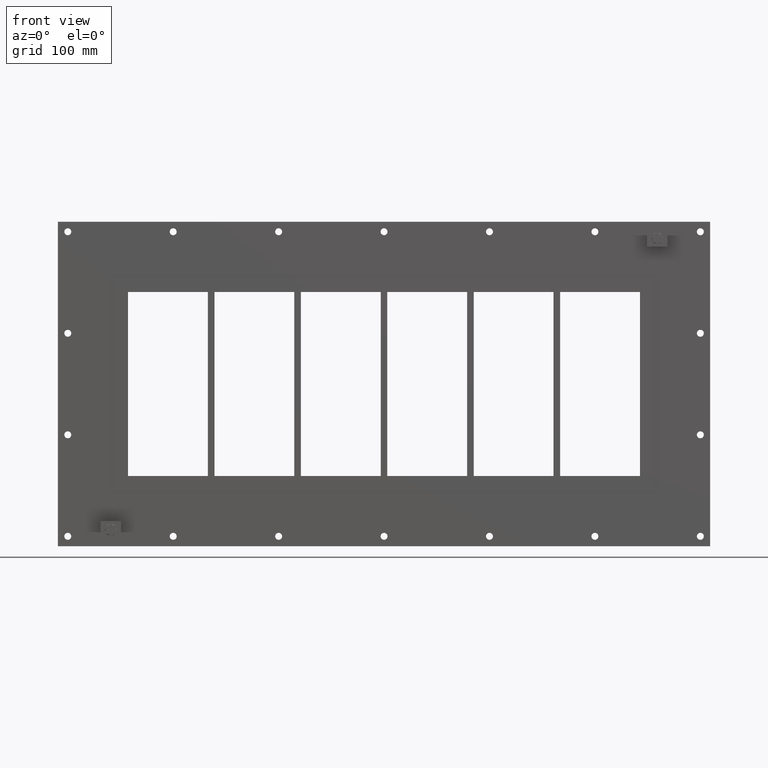
[diagram: clean part render]
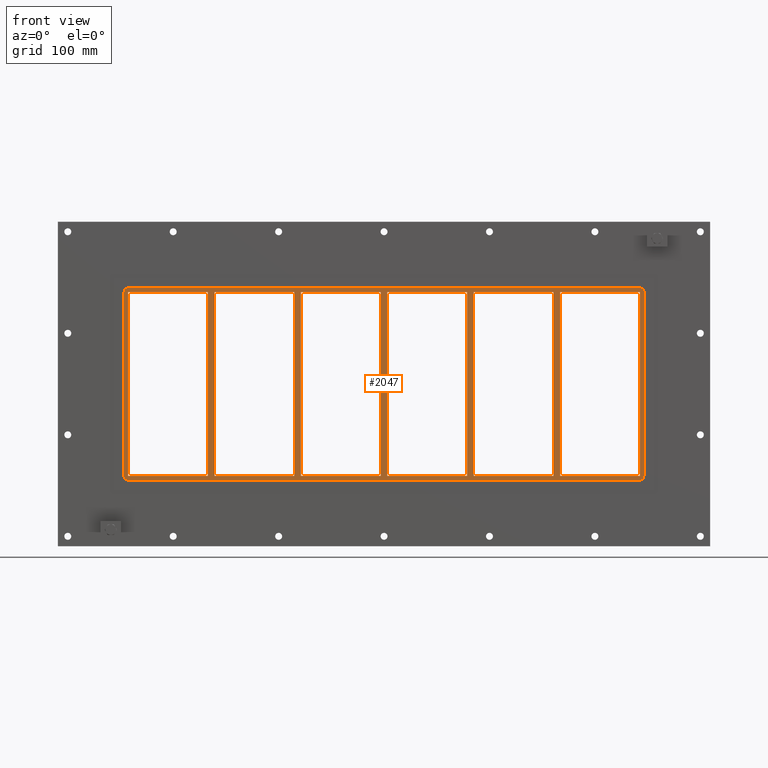
[diagram: same view with one face highlighted and labeled with its STEP entity id]
A machine part, front view. The second image highlights one B-rep face of the part: STEP entity #2047.
In plain terms, the highlighted planar face has unit normal (0, 1, 0).
Its self-contained STEP definition (entity closure, byte-faithful):
#577=CARTESIAN_POINT('',(256.00000000000068,-3.0,-139.0));
#578=VERTEX_POINT('',#577);
#579=CARTESIAN_POINT('',(256.00000000000068,-3.0,139.00000000000003));
#580=VERTEX_POINT('',#579);
#581=CARTESIAN_POINT('',(256.00000000000068,-3.0,-139.0));
#582=DIRECTION('',(0.0,0.0,1.0));
#583=VECTOR('',#582,278.0);
#584=LINE('',#581,#583);
#585=EDGE_CURVE('',#578,#580,#584,.T.);
#617=CARTESIAN_POINT('',(265.99999999999642,-3.0,139.00000000000003));
#618=VERTEX_POINT('',#617);
#619=CARTESIAN_POINT('',(265.99999999999642,-3.0,-138.99999999998175));
#620=VERTEX_POINT('',#619);
#621=CARTESIAN_POINT('',(265.99999999999642,-3.0,139.00000000000003));
#622=DIRECTION('',(0.0,0.0,-1.0));
#623=VECTOR('',#622,277.99999999998181);
#624=LINE('',#621,#623);
#625=EDGE_CURVE('',#618,#620,#624,.T.);
#657=CARTESIAN_POINT('',(125.50000000000068,-3.0,-139.0));
#658=VERTEX_POINT('',#657);
#659=CARTESIAN_POINT('',(125.50000000000065,-3.0,139.00000000000003));
#660=VERTEX_POINT('',#659);
#661=CARTESIAN_POINT('',(125.50000000000068,-3.0,-139.0));
#662=DIRECTION('',(0.0,0.0,1.0));
#663=VECTOR('',#662,278.0);
#664=LINE('',#661,#663);
#665=EDGE_CURVE('',#658,#660,#664,.T.);
#697=CARTESIAN_POINT('',(135.49999999999642,-3.0,139.00000000000003));
#698=VERTEX_POINT('',#697);
#699=CARTESIAN_POINT('',(135.49999999999642,-3.0,-138.99999999998175));
#700=VERTEX_POINT('',#699);
#701=CARTESIAN_POINT('',(135.49999999999642,-3.0,139.00000000000003));
#702=DIRECTION('',(0.0,0.0,-1.0));
#703=VECTOR('',#702,277.99999999998181);
#704=LINE('',#701,#703);
#705=EDGE_CURVE('',#698,#700,#704,.T.);
#737=CARTESIAN_POINT('',(-4.999999999999361,-3.0,-139.0));
#738=VERTEX_POINT('',#737);
#739=CARTESIAN_POINT('',(-4.999999999999396,-3.0,139.00000000000003));
#740=VERTEX_POINT('',#739);
#741=CARTESIAN_POINT('',(-4.999999999999361,-3.0,-139.0));
#742=DIRECTION('',(0.0,0.0,1.0));
#743=VECTOR('',#742,278.0);
#744=LINE('',#741,#743);
#745=EDGE_CURVE('',#738,#740,#744,.T.);
#777=CARTESIAN_POINT('',(4.999999999996376,-3.0,139.00000000000003));
#778=VERTEX_POINT('',#777);
#779=CARTESIAN_POINT('',(4.999999999996376,-3.0,-138.99999999998175));
#780=VERTEX_POINT('',#779);
#781=CARTESIAN_POINT('',(4.999999999996376,-3.0,139.00000000000003));
#782=DIRECTION('',(0.0,0.0,-1.0));
#783=VECTOR('',#782,277.99999999998181);
#784=LINE('',#781,#783);
#785=EDGE_CURVE('',#778,#780,#784,.T.);
#817=CARTESIAN_POINT('',(-135.49999999999937,-3.0,-139.0));
#818=VERTEX_POINT('',#817);
#819=CARTESIAN_POINT('',(-135.4999999999994,-3.0,139.00000000000003));
#820=VERTEX_POINT('',#819);
#821=CARTESIAN_POINT('',(-135.49999999999937,-3.0,-139.0));
#822=DIRECTION('',(0.0,0.0,1.0));
#823=VECTOR('',#822,278.0);
#824=LINE('',#821,#823);
#825=EDGE_CURVE('',#818,#820,#824,.T.);
#857=CARTESIAN_POINT('',(-125.50000000000364,-3.0,139.00000000000003));
#858=VERTEX_POINT('',#857);
#859=CARTESIAN_POINT('',(-125.50000000000364,-3.0,-138.99999999998175));
#860=VERTEX_POINT('',#859);
#861=CARTESIAN_POINT('',(-125.50000000000364,-3.0,139.00000000000003));
#862=DIRECTION('',(0.0,0.0,-1.0));
#863=VECTOR('',#862,277.99999999998181);
#864=LINE('',#861,#863);
#865=EDGE_CURVE('',#858,#860,#864,.T.);
#906=CARTESIAN_POINT('',(-256.00000000000364,-3.0,-138.99999999998175));
#907=VERTEX_POINT('',#906);
#914=CARTESIAN_POINT('',(-135.49999999999932,-3.0,-139.0));
#915=DIRECTION('',(-1.0,0.0,0.0));
#916=VECTOR('',#915,120.50000000000432);
#917=LINE('',#914,#916);
#918=EDGE_CURVE('',#818,#907,#917,.T.);
#936=CARTESIAN_POINT('',(-4.999999999999346,-3.0,-139.0));
#937=DIRECTION('',(-1.0,0.0,0.0));
#938=VECTOR('',#937,120.50000000000429);
#939=LINE('',#936,#938);
#940=EDGE_CURVE('',#738,#860,#939,.T.);
#958=CARTESIAN_POINT('',(125.5000000000007,-3.0,-139.0));
#959=DIRECTION('',(-1.0,0.0,0.0));
#960=VECTOR('',#959,120.50000000000431);
#961=LINE('',#958,#960);
#962=EDGE_CURVE('',#658,#780,#961,.T.);
#980=CARTESIAN_POINT('',(256.00000000000068,-3.0,-139.0));
#981=DIRECTION('',(-1.0,0.0,0.0));
#982=VECTOR('',#981,120.50000000000426);
#983=LINE('',#980,#982);
#984=EDGE_CURVE('',#578,#700,#983,.T.);
#995=CARTESIAN_POINT('',(386.50000000000023,-3.0,-139.0));
#996=VERTEX_POINT('',#995);
#997=CARTESIAN_POINT('',(386.50000000000023,-3.0,-139.0));
#998=DIRECTION('',(-1.0,0.0,0.0));
#999=VECTOR('',#998,120.50000000000375);
#1000=LINE('',#997,#999);
#1001=EDGE_CURVE('',#996,#620,#1000,.T.);
#1026=CARTESIAN_POINT('',(-256.00000000000364,-3.0,139.00000000000003));
#1027=VERTEX_POINT('',#1026);
#1028=CARTESIAN_POINT('',(-256.00000000000364,-3.0,139.00000000000003));
#1029=DIRECTION('',(1.0,0.0,0.0));
#1030=VECTOR('',#1029,120.50000000000423);
#1031=LINE('',#1028,#1030);
#1032=EDGE_CURVE('',#1027,#820,#1031,.T.);
#1057=CARTESIAN_POINT('',(-125.50000000000362,-3.0,139.00000000000003));
#1058=DIRECTION('',(1.0,0.0,0.0));
#1059=VECTOR('',#1058,120.50000000000425);
#1060=LINE('',#1057,#1059);
#1061=EDGE_CURVE('',#858,#740,#1060,.T.);
#1079=CARTESIAN_POINT('',(4.99999999999639,-3.0,139.00000000000003));
#1080=DIRECTION('',(1.0,0.0,0.0));
#1081=VECTOR('',#1080,120.50000000000423);
#1082=LINE('',#1079,#1081);
#1083=EDGE_CURVE('',#778,#660,#1082,.T.);
#1109=CARTESIAN_POINT('',(386.50000000000023,-3.0,139.00000000000003));
#1110=VERTEX_POINT('',#1109);
#1117=CARTESIAN_POINT('',(265.99999999999642,-3.0,139.00000000000003));
#1118=DIRECTION('',(1.0,0.0,0.0));
#1119=VECTOR('',#1118,120.50000000000375);
#1120=LINE('',#1117,#1119);
#1121=EDGE_CURVE('',#618,#1110,#1120,.T.);
#1132=CARTESIAN_POINT('',(135.49999999999642,-3.0,139.00000000000003));
#1133=DIRECTION('',(1.0,0.0,0.0));
#1134=VECTOR('',#1133,120.50000000000421);
#1135=LINE('',#1132,#1134);
#1136=EDGE_CURVE('',#698,#580,#1135,.T.);
#1153=CARTESIAN_POINT('',(-265.99999999999937,-3.0,-139.0));
#1154=VERTEX_POINT('',#1153);
#1155=CARTESIAN_POINT('',(-265.99999999999943,-3.0,139.00000000000003));
#1156=VERTEX_POINT('',#1155);
#1157=CARTESIAN_POINT('',(-265.99999999999937,-3.0,-139.0));
#1158=DIRECTION('',(0.0,0.0,1.0));
#1159=VECTOR('',#1158,278.0);
#1160=LINE('',#1157,#1159);
#1161=EDGE_CURVE('',#1154,#1156,#1160,.T.);
#1193=CARTESIAN_POINT('',(-256.00000000000364,-3.0,139.00000000000003));
#1194=DIRECTION('',(0.0,0.0,-1.0));
#1195=VECTOR('',#1194,277.99999999998181);
#1196=LINE('',#1193,#1195);
#1197=EDGE_CURVE('',#1027,#907,#1196,.T.);
#1224=CARTESIAN_POINT('',(-386.50000000000023,-3.0,-139.0));
#1225=VERTEX_POINT('',#1224);
#1232=CARTESIAN_POINT('',(-265.99999999999937,-3.0,-139.0));
#1233=DIRECTION('',(-1.0,0.0,0.0));
#1234=VECTOR('',#1233,120.50000000000085);
#1235=LINE('',#1232,#1234);
#1236=EDGE_CURVE('',#1154,#1225,#1235,.T.);
#1247=CARTESIAN_POINT('',(-386.50000000000023,-3.0,139.00000000000003));
#1248=VERTEX_POINT('',#1247);
#1249=CARTESIAN_POINT('',(-386.50000000000023,-3.0,139.00000000000003));
#1250=DIRECTION('',(1.0,0.0,0.0));
#1251=VECTOR('',#1250,120.5000000000008);
#1252=LINE('',#1249,#1251);
#1253=EDGE_CURVE('',#1248,#1156,#1252,.T.);
#1681=CARTESIAN_POINT('',(-386.50000000000011,-3.0,-139.0));
#1682=DIRECTION('',(0.0,0.0,1.0));
#1683=VECTOR('',#1682,278.0);
#1684=LINE('',#1681,#1683);
#1685=EDGE_CURVE('',#1225,#1248,#1684,.T.);
#1696=CARTESIAN_POINT('',(392.50000000000006,-3.0,-139.0));
#1697=VERTEX_POINT('',#1696);
#1704=CARTESIAN_POINT('',(386.50000000000006,-3.0,-145.0));
#1705=VERTEX_POINT('',#1704);
#1706=CARTESIAN_POINT('',(386.50000000000006,-3.0,-139.0));
#1707=DIRECTION('',(0.0,1.0,0.0));
#1708=DIRECTION('',(0.707106781186543,0.0,-0.707106781186552));
#1709=AXIS2_PLACEMENT_3D('',#1706,#1707,#1708);
#1710=CIRCLE('',#1709,6.000000000000001);
#1711=EDGE_CURVE('',#1697,#1705,#1710,.T.);
#1761=CARTESIAN_POINT('',(-386.5,-3.0,-145.0));
#1762=VERTEX_POINT('',#1761);
#1763=CARTESIAN_POINT('',(-386.49999999999994,-3.0,-145.0));
#1764=DIRECTION('',(1.0,0.0,0.0));
#1765=VECTOR('',#1764,773.0);
#1766=LINE('',#1763,#1765);
#1767=EDGE_CURVE('',#1762,#1705,#1766,.T.);
#1808=CARTESIAN_POINT('',(392.50000000000006,-3.0,139.0));
#1809=VERTEX_POINT('',#1808);
#1816=CARTESIAN_POINT('',(392.50000000000006,-3.0,-139.0));
#1817=DIRECTION('',(0.0,0.0,1.0));
#1818=VECTOR('',#1817,278.0);
#1819=LINE('',#1816,#1818);
#1820=EDGE_CURVE('',#1697,#1809,#1819,.T.);
#1833=CARTESIAN_POINT('',(-392.50000000000006,-3.0,-139.0));
#1834=VERTEX_POINT('',#1833);
#1835=CARTESIAN_POINT('',(-386.50000000000006,-3.0,-139.0));
#1836=DIRECTION('',(0.0,1.0,0.0));
#1837=DIRECTION('',(-0.707106781186543,0.0,-0.707106781186552));
#1838=AXIS2_PLACEMENT_3D('',#1835,#1836,#1837);
#1839=CIRCLE('',#1838,6.000000000000001);
#1840=EDGE_CURVE('',#1762,#1834,#1839,.T.);
#1882=CARTESIAN_POINT('',(386.5,-3.0,145.0));
#1883=VERTEX_POINT('',#1882);
#1890=CARTESIAN_POINT('',(386.50000000000006,-3.0,139.0));
#1891=DIRECTION('',(0.0,1.0,0.0));
#1892=DIRECTION('',(0.707106781186545,0.0,0.70710678118655));
#1893=AXIS2_PLACEMENT_3D('',#1890,#1891,#1892);
#1894=CIRCLE('',#1893,6.000000000000001);
#1895=EDGE_CURVE('',#1883,#1809,#1894,.T.);
#1908=CARTESIAN_POINT('',(-392.50000000000006,-3.0,139.0));
#1909=VERTEX_POINT('',#1908);
#1910=CARTESIAN_POINT('',(-392.50000000000006,-3.0,139.0));
#1911=DIRECTION('',(0.0,0.0,-1.0));
#1912=VECTOR('',#1911,278.0);
#1913=LINE('',#1910,#1912);
#1914=EDGE_CURVE('',#1909,#1834,#1913,.T.);
#1955=CARTESIAN_POINT('',(-386.50000000000006,-3.0,145.0));
#1956=VERTEX_POINT('',#1955);
#1963=CARTESIAN_POINT('',(386.49999999999994,-3.0,145.0));
#1964=DIRECTION('',(-1.0,0.0,0.0));
#1965=VECTOR('',#1964,773.0);
#1966=LINE('',#1963,#1965);
#1967=EDGE_CURVE('',#1883,#1956,#1966,.T.);
#1980=CARTESIAN_POINT('',(-386.50000000000006,-3.0,139.0));
#1981=DIRECTION('',(0.0,1.0,0.0));
#1982=DIRECTION('',(-0.707106781186543,0.0,0.707106781186552));
#1983=AXIS2_PLACEMENT_3D('',#1980,#1981,#1982);
#1984=CIRCLE('',#1983,6.000000000000001);
#1985=EDGE_CURVE('',#1909,#1956,#1984,.T.);
#1991=CARTESIAN_POINT('',(0.0,-3.0,0.0));
#1992=DIRECTION('',(0.0,1.0,0.0));
#1993=DIRECTION('',(0.0,0.0,1.0));
#1994=AXIS2_PLACEMENT_3D('',#1991,#1992,#1993);
#1995=PLANE('',#1994);
#1996=ORIENTED_EDGE('',*,*,#1840,.F.);
#1997=ORIENTED_EDGE('',*,*,#1767,.T.);
#1998=ORIENTED_EDGE('',*,*,#1711,.F.);
#1999=ORIENTED_EDGE('',*,*,#1820,.T.);
#2000=ORIENTED_EDGE('',*,*,#1895,.F.);
#2001=ORIENTED_EDGE('',*,*,#1967,.T.);
#2002=ORIENTED_EDGE('',*,*,#1985,.F.);
#2003=ORIENTED_EDGE('',*,*,#1914,.T.);
#2004=EDGE_LOOP('',(#1996,#1997,#1998,#1999,#2000,#2001,#2002,#2003));
#2005=FACE_OUTER_BOUND('',#2004,.T.);
#2006=ORIENTED_EDGE('',*,*,#984,.T.);
#2007=ORIENTED_EDGE('',*,*,#705,.F.);
#2008=ORIENTED_EDGE('',*,*,#1136,.T.);
#2009=ORIENTED_EDGE('',*,*,#585,.F.);
#2010=EDGE_LOOP('',(#2006,#2007,#2008,#2009));
#2011=FACE_BOUND('',#2010,.T.);
#2012=ORIENTED_EDGE('',*,*,#962,.T.);
#2013=ORIENTED_EDGE('',*,*,#785,.F.);
#2014=ORIENTED_EDGE('',*,*,#1083,.T.);
#2015=ORIENTED_EDGE('',*,*,#665,.F.);
#2016=EDGE_LOOP('',(#2012,#2013,#2014,#2015));
#2017=FACE_BOUND('',#2016,.T.);
#2018=ORIENTED_EDGE('',*,*,#940,.T.);
#2019=ORIENTED_EDGE('',*,*,#865,.F.);
#2020=ORIENTED_EDGE('',*,*,#1061,.T.);
#2021=ORIENTED_EDGE('',*,*,#745,.F.);
#2022=EDGE_LOOP('',(#2018,#2019,#2020,#2021));
#2023=FACE_BOUND('',#2022,.T.);
#2024=ORIENTED_EDGE('',*,*,#918,.T.);
#2025=ORIENTED_EDGE('',*,*,#1197,.F.);
#2026=ORIENTED_EDGE('',*,*,#1032,.T.);
#2027=ORIENTED_EDGE('',*,*,#825,.F.);
#2028=EDGE_LOOP('',(#2024,#2025,#2026,#2027));
#2029=FACE_BOUND('',#2028,.T.);
#2030=ORIENTED_EDGE('',*,*,#1236,.T.);
#2031=ORIENTED_EDGE('',*,*,#1685,.T.);
#2032=ORIENTED_EDGE('',*,*,#1253,.T.);
#2033=ORIENTED_EDGE('',*,*,#1161,.F.);
#2034=EDGE_LOOP('',(#2030,#2031,#2032,#2033));
#2035=FACE_BOUND('',#2034,.T.);
#2036=ORIENTED_EDGE('',*,*,#625,.F.);
#2037=ORIENTED_EDGE('',*,*,#1121,.T.);
#2038=CARTESIAN_POINT('',(386.50000000000023,-3.0,139.00000000000003));
#2039=DIRECTION('',(0.0,0.0,-1.0));
#2040=VECTOR('',#2039,278.0);
#2041=LINE('',#2038,#2040);
#2042=EDGE_CURVE('',#1110,#996,#2041,.T.);
#2043=ORIENTED_EDGE('',*,*,#2042,.T.);
#2044=ORIENTED_EDGE('',*,*,#1001,.T.);
#2045=EDGE_LOOP('',(#2036,#2037,#2043,#2044));
#2046=FACE_BOUND('',#2045,.T.);
#2047=ADVANCED_FACE('',(#2005,#2011,#2017,#2023,#2029,#2035,#2046),#1995,.F.);